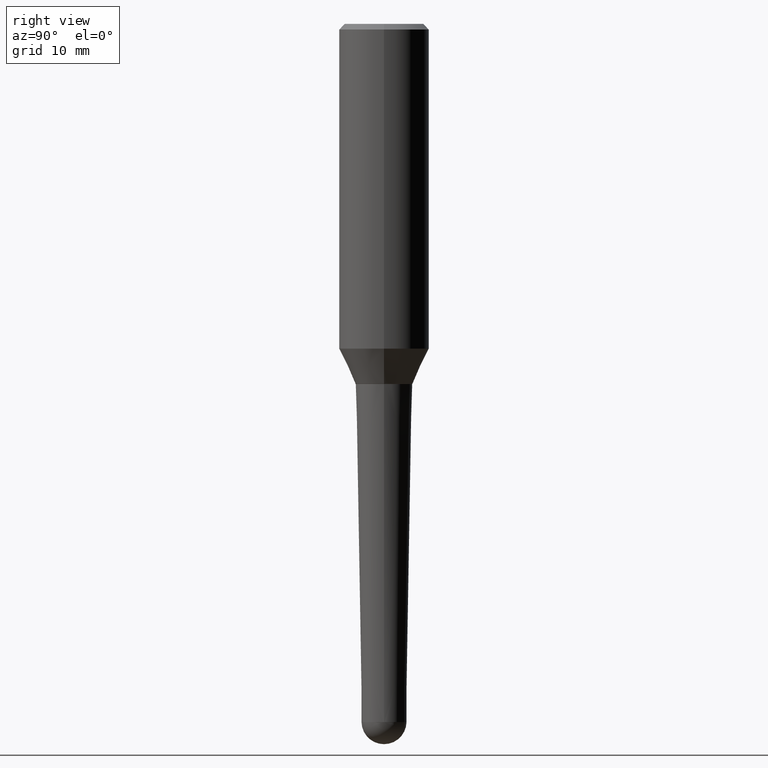
[diagram: clean part render]
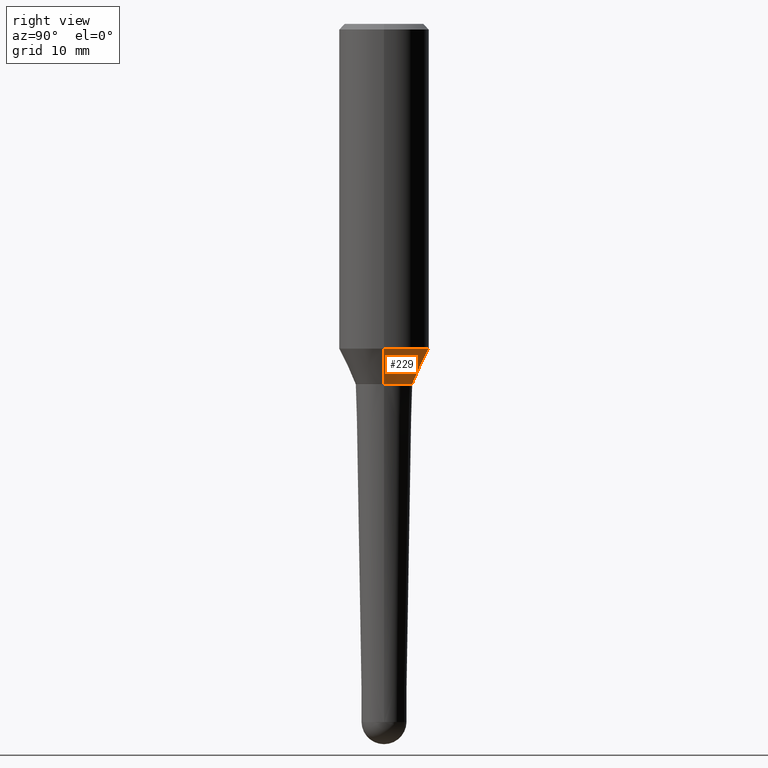
[diagram: same view with one face highlighted and labeled with its STEP entity id]
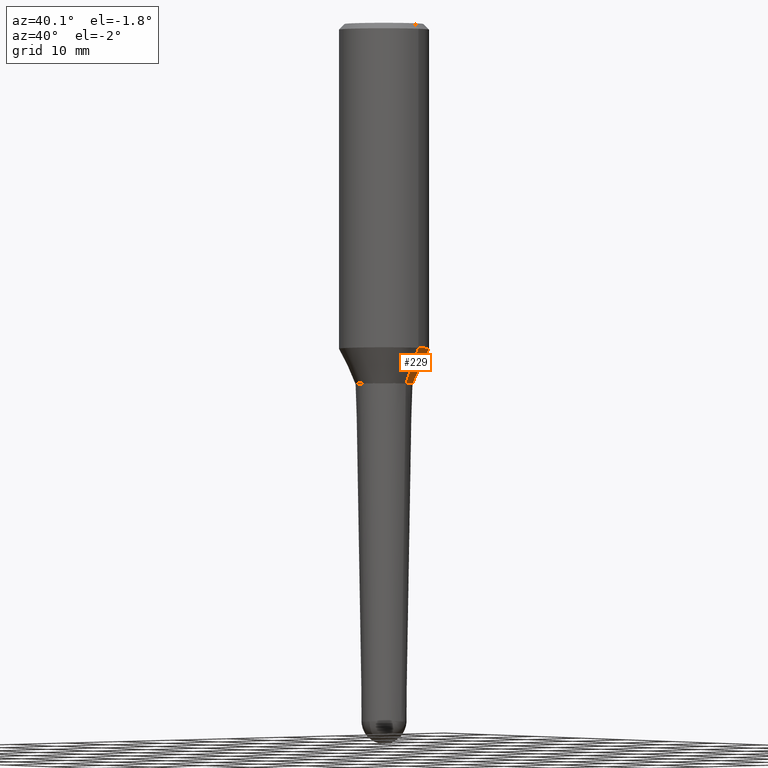
[diagram: same view with one face highlighted and labeled with its STEP entity id]
A machine part, right view. The second image highlights one B-rep face of the part: STEP entity #229.
A second angle (auxiliary view) of the same face is appended — the face is thin or edge-on in the first view.
In plain terms, the highlighted conical surface has half-angle 25 deg.
Its self-contained STEP definition (entity closure, byte-faithful):
#2 = DIRECTION ( 'NONE',  ( -2.445468806185136597E-29, 3.491481338843145583E-15, 1.000000000000000000 ) ) ;
#13 = AXIS2_PLACEMENT_3D ( 'NONE', #308, #331, #366 ) ;
#15 = LINE ( 'NONE', #437, #346 ) ;
#32 = ORIENTED_EDGE ( 'NONE', *, *, #276, .T. ) ;
#37 = EDGE_CURVE ( 'NONE', #55, #103, #79, .T. ) ;
#48 = DIRECTION ( 'NONE',  ( -2.445468806185136597E-29, 3.491481338843145583E-15, 1.000000000000000000 ) ) ;
#51 = CIRCLE ( 'NONE', #92, 0.2500000000000002220 ) ;
#55 = VERTEX_POINT ( 'NONE', #187 ) ;
#79 = CIRCLE ( 'NONE', #127, 0.1587472877458968035 ) ;
#92 = AXIS2_PLACEMENT_3D ( 'NONE', #194, #48, #121 ) ;
#101 = CARTESIAN_POINT ( 'NONE',  ( 4.889714877967179832E-29, -6.981216937016868873E-15, -1.999499999999999833 ) ) ;
#103 = VERTEX_POINT ( 'NONE', #224 ) ;
#112 = VECTOR ( 'NONE', #192, 39.37007874015748854 ) ;
#116 = DIRECTION ( 'NONE',  ( -0.4226182617406884501, 6.167240084480778447E-15, 0.9063077870366550437 ) ) ;
#121 = DIRECTION ( 'NONE',  ( 1.000000000000000000, -6.982962677686268288E-15, 0.000000000000000000 ) ) ;
#127 = AXIS2_PLACEMENT_3D ( 'NONE', #101, #2, #364 ) ;
#174 = CARTESIAN_POINT ( 'NONE',  ( 0.2500000000000002220, -8.043702385594237575E-15, -1.803807927055801397 ) ) ;
#187 = CARTESIAN_POINT ( 'NONE',  ( 0.1587472877458968035, -8.089743322530388676E-15, -1.999499999999999833 ) ) ;
#192 = DIRECTION ( 'NONE',  ( 0.4226182617406884501, 2.132291770428352764E-16, 0.9063077870366550437 ) ) ;
#194 = CARTESIAN_POINT ( 'NONE',  ( 4.411156017964436703E-29, -6.297961716172668531E-15, -1.803807927055801397 ) ) ;
#224 = CARTESIAN_POINT ( 'NONE',  ( -0.1587472877458968035, -5.853249615722215052E-15, -1.999499999999999833 ) ) ;
#229 = ADVANCED_FACE ( 'NONE', ( #231 ), #291, .T. ) ;
#231 = FACE_OUTER_BOUND ( 'NONE', #387, .T. ) ;
#238 = CARTESIAN_POINT ( 'NONE',  ( 0.1587472877458968035, -8.089743322530388676E-15, -1.999499999999999833 ) ) ;
#248 = EDGE_CURVE ( 'NONE', #373, #445, #51, .T. ) ;
#267 = LINE ( 'NONE', #238, #112 ) ;
#276 = EDGE_CURVE ( 'NONE', #103, #445, #15, .T. ) ;
#280 = ORIENTED_EDGE ( 'NONE', *, *, #327, .F. ) ;
#283 = ORIENTED_EDGE ( 'NONE', *, *, #248, .F. ) ;
#291 = CONICAL_SURFACE ( 'NONE', #13, 0.1587472877458968035, 0.4363323129985702820 ) ;
#308 = CARTESIAN_POINT ( 'NONE',  ( 4.889714877967179832E-29, -6.981216937016868873E-15, -1.999499999999999833 ) ) ;
#327 = EDGE_CURVE ( 'NONE', #55, #373, #267, .T. ) ;
#331 = DIRECTION ( 'NONE',  ( -2.445468806185136597E-29, 3.491481338843145583E-15, 1.000000000000000000 ) ) ;
#346 = VECTOR ( 'NONE', #116, 39.37007874015748854 ) ;
#348 = ORIENTED_EDGE ( 'NONE', *, *, #37, .T. ) ;
#364 = DIRECTION ( 'NONE',  ( 1.000000000000000000, -6.982962677686266711E-15, 0.000000000000000000 ) ) ;
#366 = DIRECTION ( 'NONE',  ( 1.000000000000000000, -6.982962677686266711E-15, 0.000000000000000000 ) ) ;
#373 = VERTEX_POINT ( 'NONE', #174 ) ;
#387 = EDGE_LOOP ( 'NONE', ( #348, #32, #283, #280 ) ) ;
#437 = CARTESIAN_POINT ( 'NONE',  ( -0.1587472877458968035, -5.853249615722215052E-15, -1.999499999999999833 ) ) ;
#445 = VERTEX_POINT ( 'NONE', #447 ) ;
#447 = CARTESIAN_POINT ( 'NONE',  ( -0.2500000000000002220, -4.521604876772416489E-15, -1.803807927055801397 ) ) ;